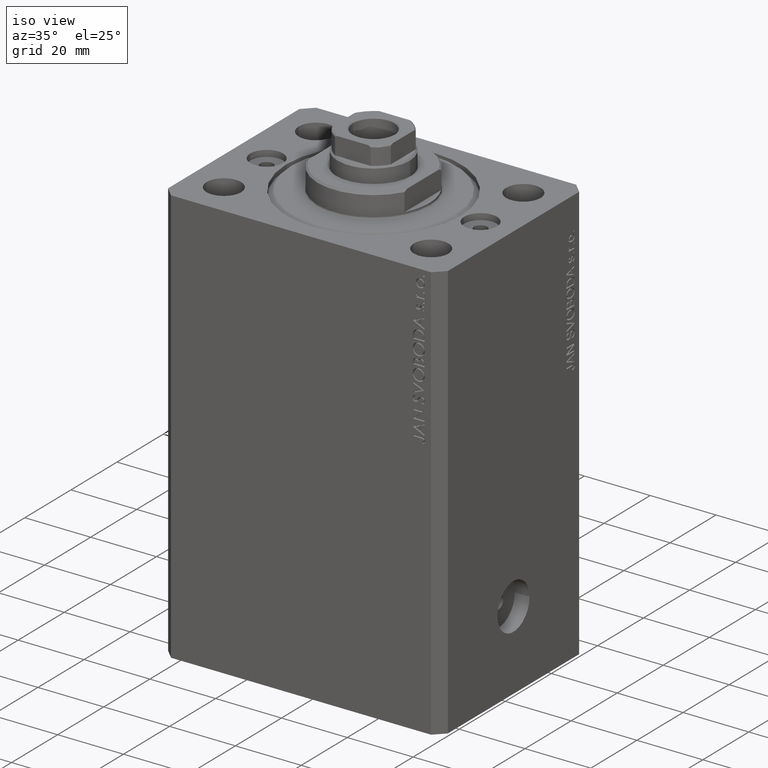
[diagram: clean part render]
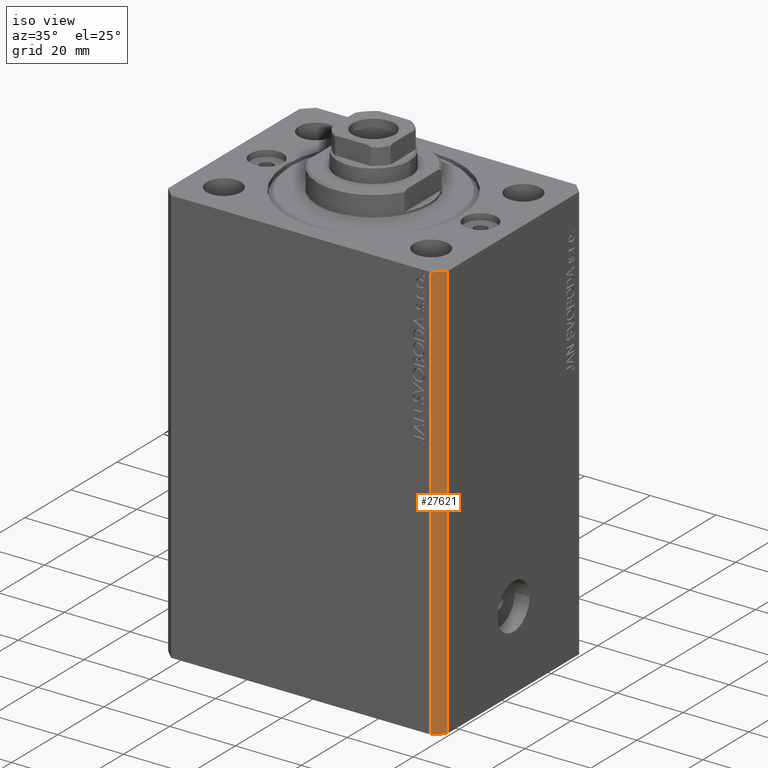
[diagram: same view with one face highlighted and labeled with its STEP entity id]
A machine part, iso view. The second image highlights one B-rep face of the part: STEP entity #27621.
In plain terms, the highlighted planar face has unit normal (0.7071, -0.7071, 0).
Its self-contained STEP definition (entity closure, byte-faithful):
#2470 = LINE ( 'NONE', #24435, #20632 ) ;
#3531 = DIRECTION ( 'NONE',  ( 0.000000000000000000, 0.000000000000000000, 1.000000000000000000 ) ) ;
#7702 = DIRECTION ( 'NONE',  ( 0.7071067811865483499, 0.7071067811865466846, 0.000000000000000000 ) ) ;
#8414 = LINE ( 'NONE', #15585, #16777 ) ;
#9379 = LINE ( 'NONE', #34446, #32322 ) ;
#11149 = EDGE_LOOP ( 'NONE', ( #46308, #13404, #29267, #31607 ) ) ;
#13404 = ORIENTED_EDGE ( 'NONE', *, *, #36937, .F. ) ;
#13818 = CARTESIAN_POINT ( 'NONE',  ( 42.50000000000000711, -28.50000000000000355, -127.0000000000000000 ) ) ;
#15585 = CARTESIAN_POINT ( 'NONE',  ( 39.50000000000000711, -31.50000000000000000, -127.0000000000000000 ) ) ;
#16777 = VECTOR ( 'NONE', #7702, 1000.000000000000000 ) ;
#17926 = VERTEX_POINT ( 'NONE', #26496 ) ;
#18181 = AXIS2_PLACEMENT_3D ( 'NONE', #26040, #36779, #29383 ) ;
#20632 = VECTOR ( 'NONE', #23729, 1000.000000000000000 ) ;
#23729 = DIRECTION ( 'NONE',  ( 0.000000000000000000, 0.000000000000000000, 1.000000000000000000 ) ) ;
#24435 = CARTESIAN_POINT ( 'NONE',  ( 39.50000000000000711, -31.50000000000000000, -127.0000000000000000 ) ) ;
#26040 = CARTESIAN_POINT ( 'NONE',  ( 39.50000000000000711, -31.50000000000000000, -127.0000000000000000 ) ) ;
#26496 = CARTESIAN_POINT ( 'NONE',  ( 42.50000000000000711, -28.50000000000000355, -127.0000000000000000 ) ) ;
#26973 = EDGE_CURVE ( 'NONE', #17926, #28209, #43398, .T. ) ;
#27339 = VECTOR ( 'NONE', #3531, 1000.000000000000000 ) ;
#27621 = ADVANCED_FACE ( 'NONE', ( #44176 ), #47058, .T. ) ;
#28209 = VERTEX_POINT ( 'NONE', #44964 ) ;
#29267 = ORIENTED_EDGE ( 'NONE', *, *, #30982, .T. ) ;
#29383 = DIRECTION ( 'NONE',  ( 0.7071067811865483499, 0.7071067811865465735, 0.000000000000000000 ) ) ;
#30982 = EDGE_CURVE ( 'NONE', #38679, #17926, #8414, .T. ) ;
#31607 = ORIENTED_EDGE ( 'NONE', *, *, #26973, .T. ) ;
#32322 = VECTOR ( 'NONE', #37801, 1000.000000000000000 ) ;
#33957 = CARTESIAN_POINT ( 'NONE',  ( 39.50000000000000711, -31.50000000000000000, 0.000000000000000000 ) ) ;
#34446 = CARTESIAN_POINT ( 'NONE',  ( 39.50000000000000711, -31.50000000000000000, 0.000000000000000000 ) ) ;
#35434 = VERTEX_POINT ( 'NONE', #33957 ) ;
#36779 = DIRECTION ( 'NONE',  ( 0.7071067811865466846, -0.7071067811865484609, 0.000000000000000000 ) ) ;
#36937 = EDGE_CURVE ( 'NONE', #38679, #35434, #2470, .T. ) ;
#37801 = DIRECTION ( 'NONE',  ( 0.7071067811865483499, 0.7071067811865466846, 0.000000000000000000 ) ) ;
#38679 = VERTEX_POINT ( 'NONE', #46715 ) ;
#43398 = LINE ( 'NONE', #13818, #27339 ) ;
#44176 = FACE_OUTER_BOUND ( 'NONE', #11149, .T. ) ;
#44900 = EDGE_CURVE ( 'NONE', #35434, #28209, #9379, .T. ) ;
#44964 = CARTESIAN_POINT ( 'NONE',  ( 42.50000000000000711, -28.50000000000000355, 0.000000000000000000 ) ) ;
#46308 = ORIENTED_EDGE ( 'NONE', *, *, #44900, .F. ) ;
#46715 = CARTESIAN_POINT ( 'NONE',  ( 39.50000000000000711, -31.50000000000000000, -127.0000000000000000 ) ) ;
#47058 = PLANE ( 'NONE',  #18181 ) ;